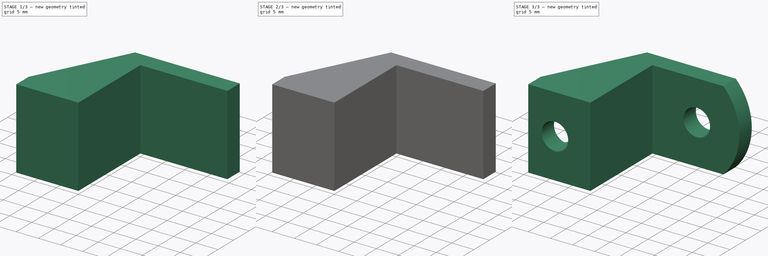
[diagram: build sequence overview — one tinted view per stage of 3, left to right]
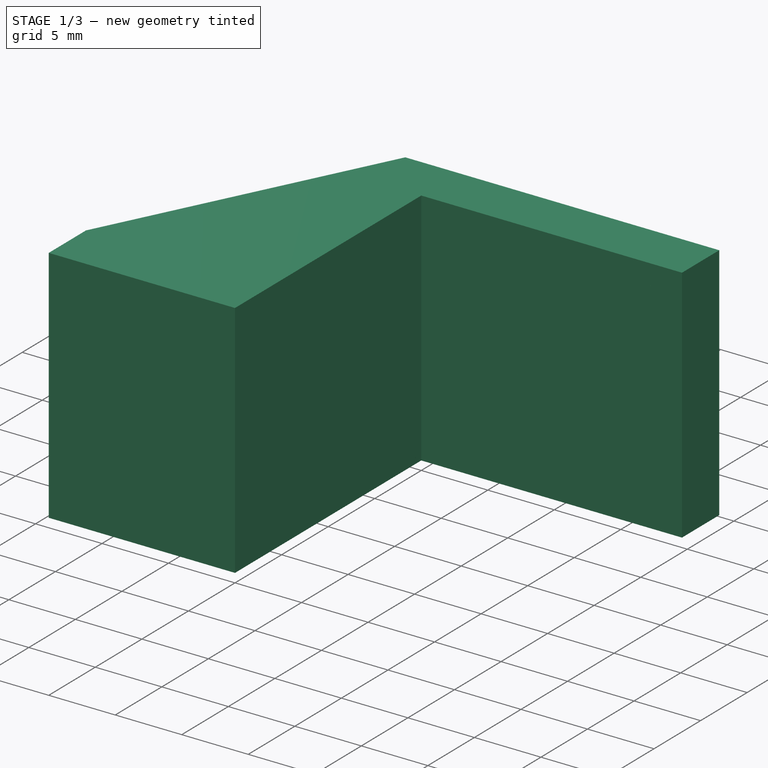
[diagram: stage 1 of 3 — iso view after this stage's code; geometry added in this stage tinted green]
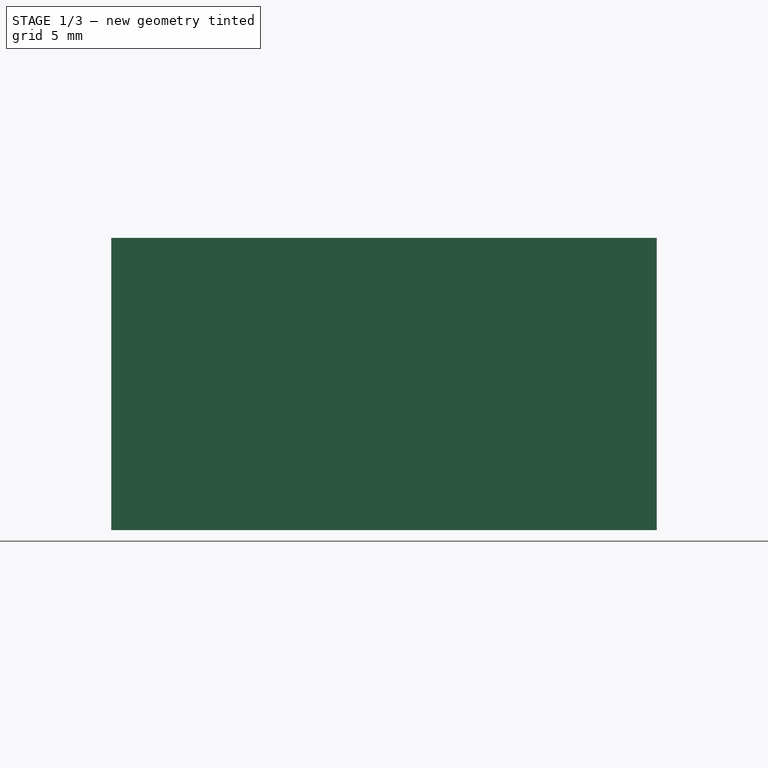
[diagram: stage 1 of 3 — front view after this stage's code; geometry added in this stage tinted green]
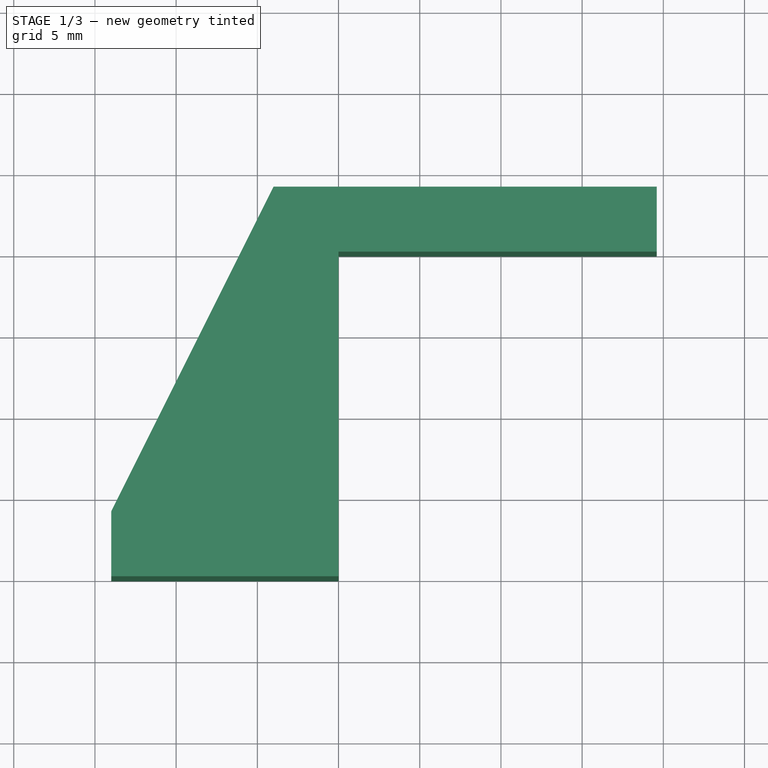
[diagram: stage 1 of 3 — top view after this stage's code; geometry added in this stage tinted green]
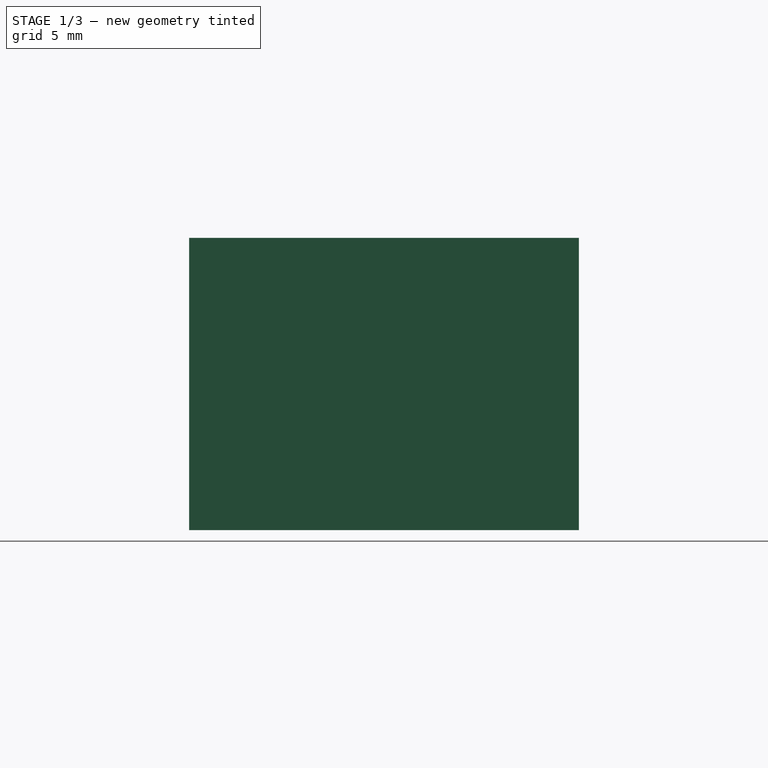
[diagram: stage 1 of 3 — right view after this stage's code; geometry added in this stage tinted green]
FCSTD DOCUMENT  (FreeCAD 0.14R2756 (Git))
Label: electronics_case_mount_v1.1
License: CC-BY 3.0
LicenseURL: http://creativecommons.org/licenses/by/3.0/
objects: Sketcher::SketchObject×4, PartDesign::Pocket×3, PartDesign::Pad×1, Part::Feature×1, PartDesign::Chamfer×1
note: 14 computed .brp shape members not serialized (recipe doc carries the construction recipe); baked Part::Feature solids carry a one-line shape summary decoded from their .brp

FEATURE [Sketcher::SketchObject] Sketch
  sketch-geometry (7):
    g0: LineSegment StartX=-4 StartY=24 StartZ=0 EndX=19.6 EndY=24 EndZ=0
    g1: LineSegment StartX=19.6 StartY=24 StartZ=0 EndX=19.6 EndY=20 EndZ=0
    g2: LineSegment StartX=19.6 StartY=20 StartZ=0 EndX=0 EndY=20 EndZ=0
    g3: LineSegment StartX=-14 StartY=4 StartZ=0 EndX=-14 EndY=0 EndZ=0
    g4: LineSegment StartX=-14 StartY=0 StartZ=0 EndX=0 EndY=0 EndZ=0
    g5: LineSegment StartX=0 StartY=20 StartZ=0 EndX=0 EndY=0 EndZ=0
    g6: LineSegment StartX=-4 StartY=24 StartZ=0 EndX=-14 EndY=4 EndZ=0
  constraints (20):
    c: Coincident(g0,g1)
    c: Coincident(g1,g2)
    c: Horizontal(g0)
    c: Horizontal(g2)
    c: Vertical(g1)
    c: Coincident(g3,g4)
    c: Horizontal(g4)
    c: Vertical(g3)
    c: Coincident(g5,g2)
    c: Coincident(g5,g4)
    c: Vertical(g5)
    c: Coincident(g6,g0)
    c: Coincident(g6,g3)
    c: DistanceY(g1) = -4
    c: DistanceY(g3) = -4
    c: DistanceX(g2) = -19.6
    c: DistanceY(g5) = -20
    c: DistanceX(g4) = 14
    c: DistanceX(g0,g2) = 4
    c: Coincident(g4,g-1)
FEATURE [PartDesign::Pad] Pad
  Length = 18
  Length2 = 100
  Sketch = -> Sketch
  Type = 0
FEATURE [Part::Feature] Pocket002001  label="Pocket003"
  shape: bbox 33.6 x 24 x 18 mm, 16 faces (baked)
FEATURE [PartDesign::Chamfer] Chamfer
  Base = -> Pocket002001 [Edge32,Edge31,Edge33,Edge13,Edge26,Edge24]
  Size = 0.4
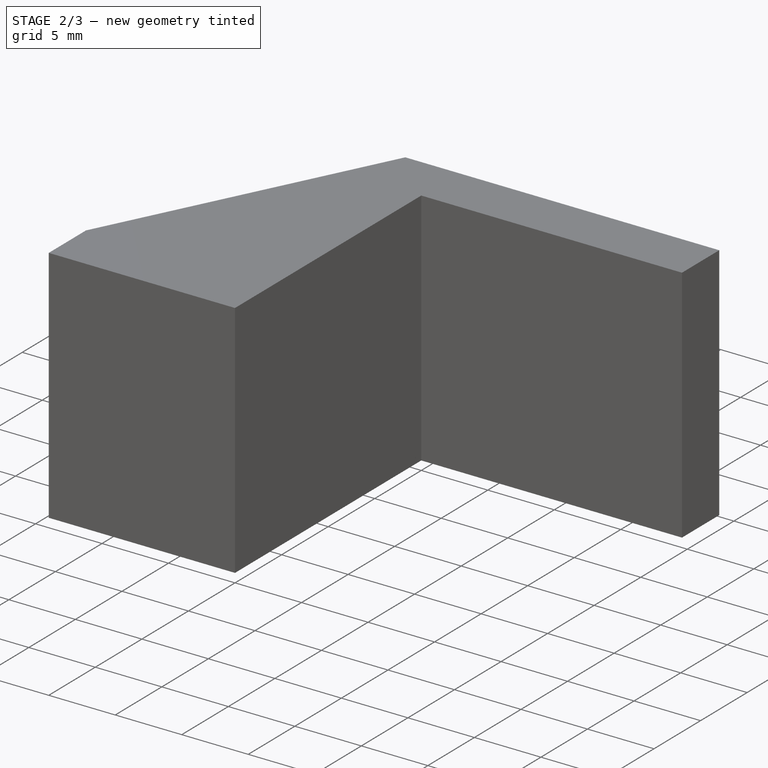
[diagram: stage 2 of 3 — iso view after this stage's code; geometry added in this stage tinted green]
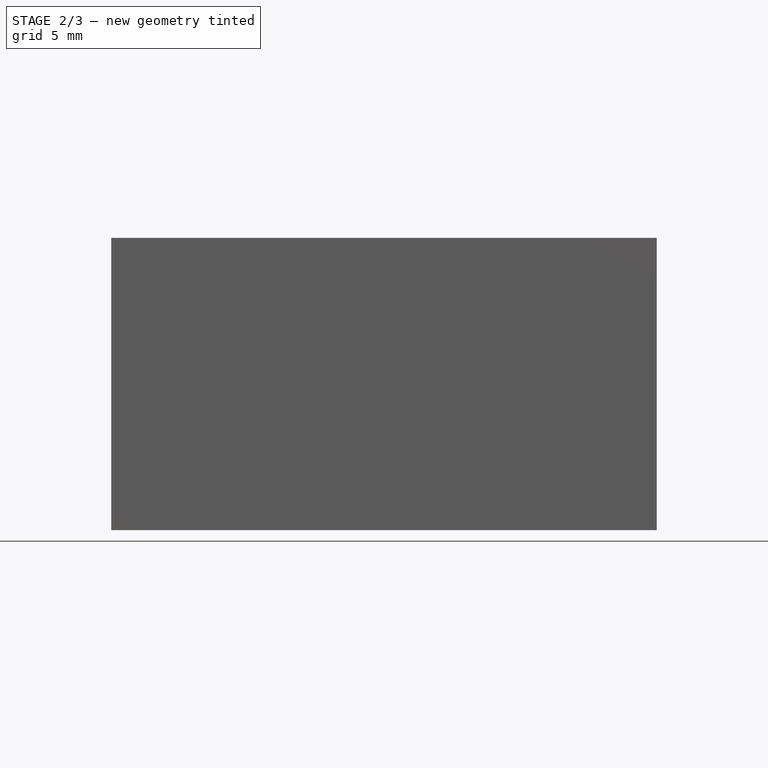
[diagram: stage 2 of 3 — front view after this stage's code; geometry added in this stage tinted green]
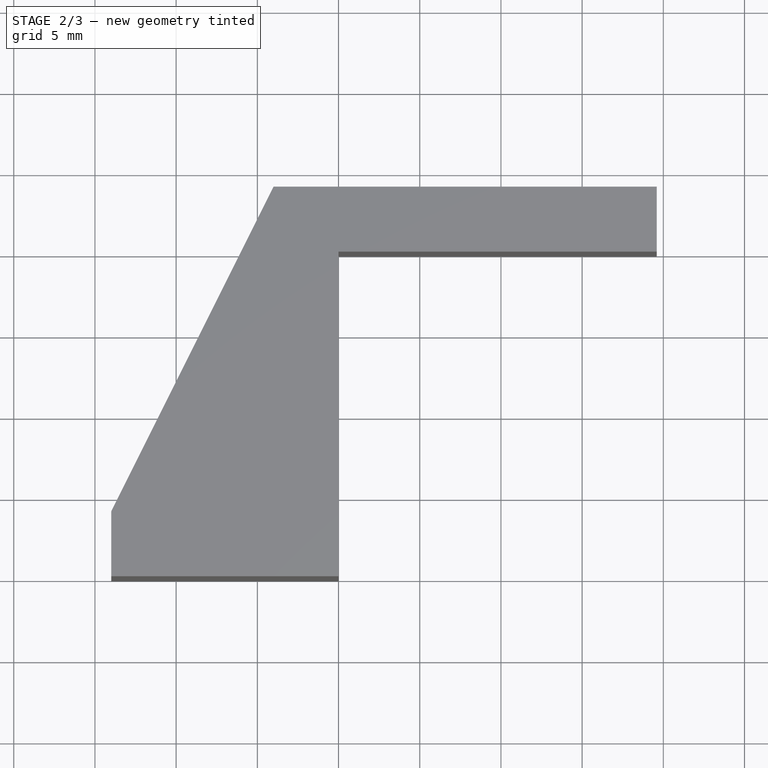
[diagram: stage 2 of 3 — top view after this stage's code; geometry added in this stage tinted green]
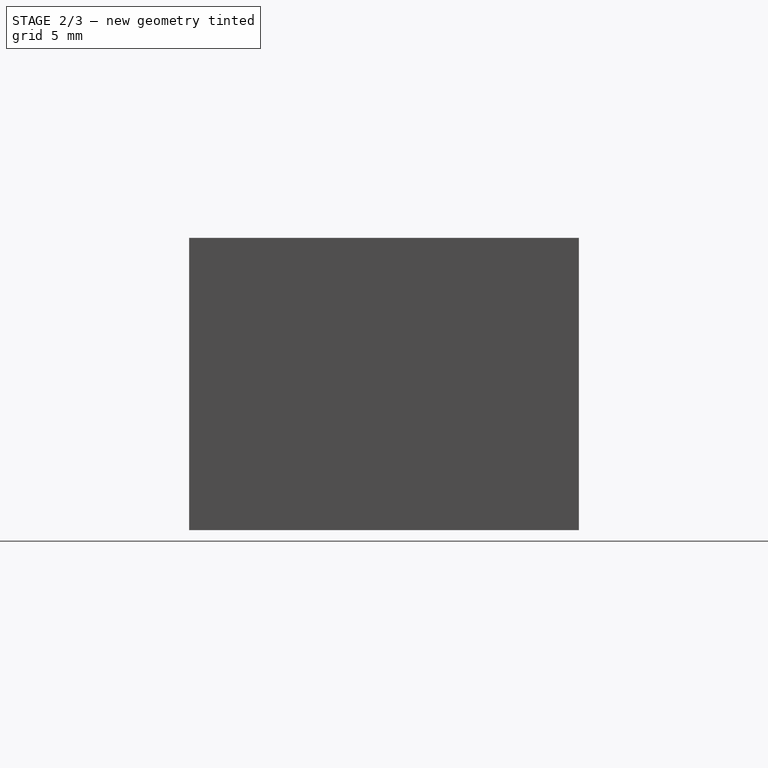
[diagram: stage 2 of 3 — right view after this stage's code; geometry added in this stage tinted green]
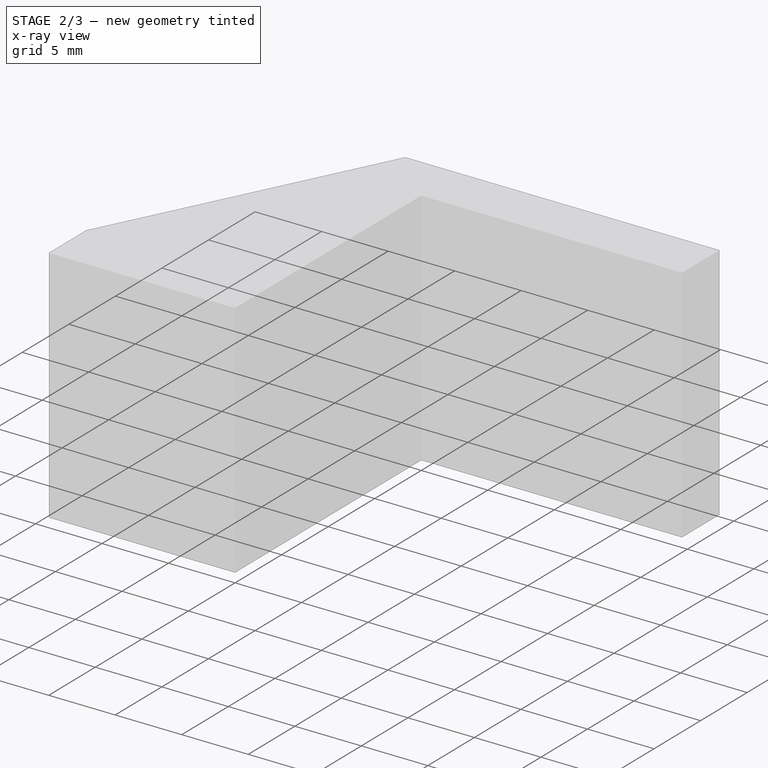
[diagram: stage 2 of 3 — x-ray composite at the iso view; earlier geometry ghosted, this stage's added geometry solid]
FEATURE [Sketcher::SketchObject] Sketch001
  ExternalGeometry = -> [Pad]
  Placement = pos=(0,24,0) rot=(0,0.707107,0.707107;3.14159rad)
  Support = -> Pad [Face1]
  sketch-geometry (5):
    g0: ArcOfCircle CenterX=8 CenterY=9 CenterZ=0 NormalX=0 NormalY=0 NormalZ=1 Radius=5.5 StartAngle=1.5708 EndAngle=4.71239
    g1: LineSegment StartX=8 StartY=14.5 StartZ=0 EndX=28 EndY=14.5 EndZ=0
    g2: LineSegment StartX=28 StartY=14.5 StartZ=0 EndX=28 EndY=3.5 EndZ=0
    g3: LineSegment StartX=28 StartY=3.5 StartZ=0 EndX=8 EndY=3.5 EndZ=0
    g4: LineSegment [constr] StartX=8 StartY=3.5 StartZ=0 EndX=8 EndY=14.5 EndZ=0
  constraints (15):
    c: DistanceY(g-1,g0) = 9
    c: Coincident(g1,g2)
    c: Coincident(g2,g3)
    c: Coincident(g3,g4)
    c: Coincident(g4,g1)
    c: Horizontal(g1)
    c: Horizontal(g3)
    c: Vertical(g2)
    c: Vertical(g4)
    c: Coincident(g3,g0)
    c: PointOnObject(g0,g4)
    c: DistanceY(g2) = -11
    c: Coincident(g0,g1)
    c: DistanceX(g-3,g0) = -6
    c: DistanceX(g1) = 20
FEATURE [PartDesign::Pocket] Pocket
  Length = 20
  Sketch = -> Sketch001
  Type = 0
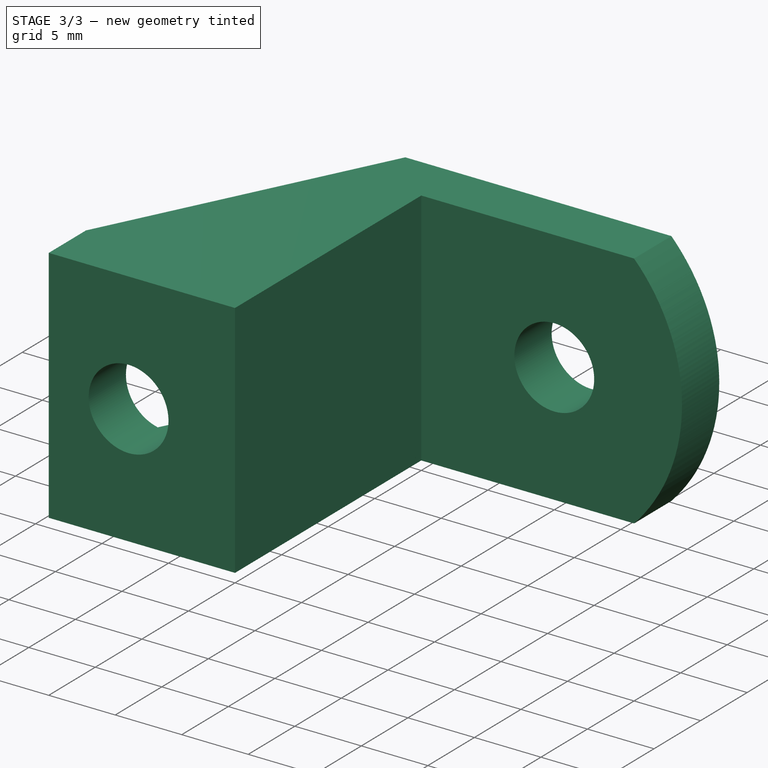
[diagram: stage 3 of 3 — iso view after this stage's code; geometry added in this stage tinted green]
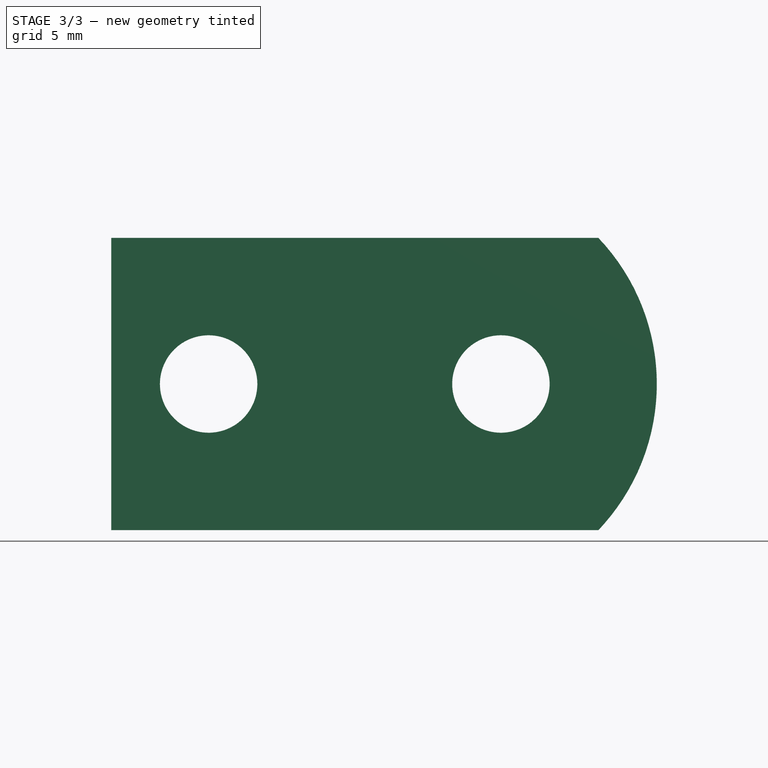
[diagram: stage 3 of 3 — front view after this stage's code; geometry added in this stage tinted green]
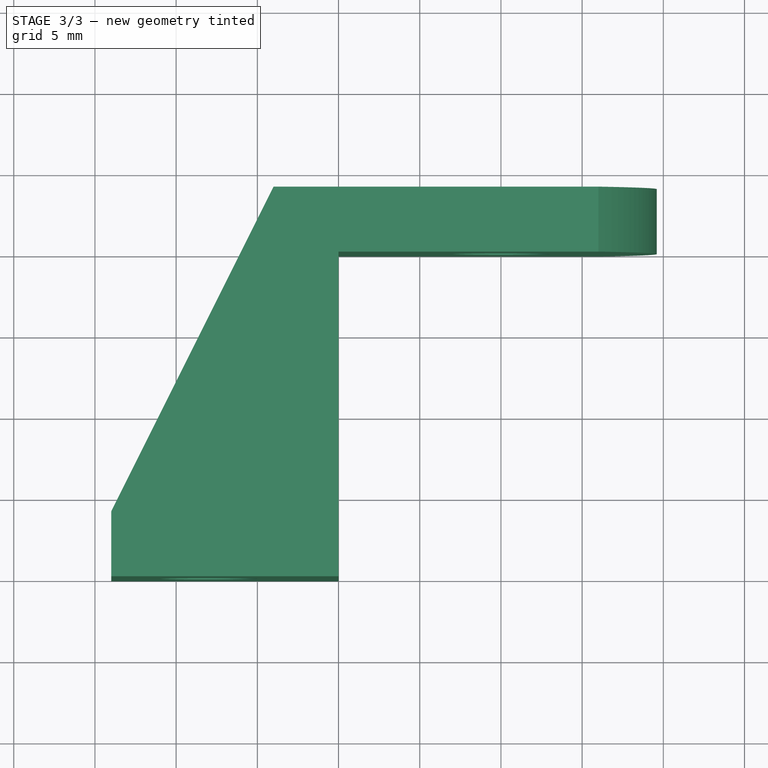
[diagram: stage 3 of 3 — top view after this stage's code; geometry added in this stage tinted green]
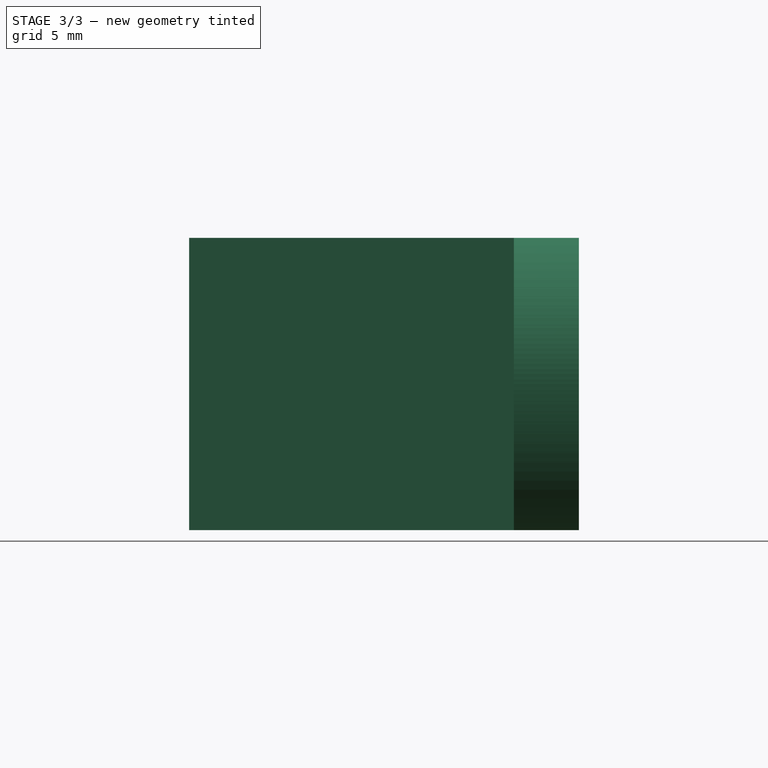
[diagram: stage 3 of 3 — right view after this stage's code; geometry added in this stage tinted green]
FEATURE [Sketcher::SketchObject] Sketch002
  ExternalGeometry = -> [Pocket]
  Placement = pos=(0,4,0) rot=(0,0.707107,0.707107;3.14159rad)
  Support = -> Pocket [Face14]
  sketch-geometry (1):
    g0: Circle CenterX=8 CenterY=9 CenterZ=0 NormalX=0 NormalY=0 NormalZ=1 Radius=3
  constraints (2):
    c: Coincident(g0,g-3)
    c: Radius(g0) = 3
FEATURE [PartDesign::Pocket] Pocket001
  Length = 5
  Sketch = -> Sketch002
  Type = 0
FEATURE [Sketcher::SketchObject] Sketch003
  ExternalGeometry = -> [Pocket001]
  Placement = pos=(0,20,0) rot=(1,0,0;1.5708rad)
  Support = -> Pocket001 [Face3]
  sketch-geometry (7):
    g0: Circle CenterX=10 CenterY=9 CenterZ=0 NormalX=0 NormalY=0 NormalZ=1 Radius=3
    g1: ArcOfCircle CenterX=6.55 CenterY=9 CenterZ=0 NormalX=0 NormalY=0 NormalZ=1 Radius=13.05 StartAngle=5.52217 EndAngle=7.0442
    g2: LineSegment StartX=16 StartY=23 StartZ=0 EndX=26 EndY=23 EndZ=0
    g3: LineSegment StartX=26 StartY=23 StartZ=0 EndX=26 EndY=-5 EndZ=0
    g4: LineSegment StartX=26 StartY=-5 StartZ=0 EndX=16 EndY=-5 EndZ=0
    g5: LineSegment StartX=16 StartY=18 StartZ=0 EndX=16 EndY=23 EndZ=0
    g6: LineSegment StartX=16 StartY=0 StartZ=0 EndX=16 EndY=-5 EndZ=0
  constraints (22):
    c: DistanceY(g-1,g0) = 9
    c: PointOnObject(g1,g-1)
    c: DistanceX(g-3,g0) = 10
    c: Tangent(g1,g-4)
    c: PointOnObject(g1,g-3)
    c: DistanceX(g1,g-3) = -16
    c: DistanceX(g-1,g1) = 16
    c: Radius(g0) = 3
    c: Coincident(g2,g3)
    c: Coincident(g3,g4)
    c: Horizontal(g2)
    c: Horizontal(g4)
    c: Vertical(g3)
    c: Coincident(g5,g1)
    c: Coincident(g5,g2)
    c: Vertical(g5)
    c: Coincident(g6,g1)
    c: Coincident(g6,g4)
    c: Vertical(g6)
    c: Equal(g5,g6)
    c: DistanceY(g5) = 5
    c: DistanceX(g2) = 10
FEATURE [PartDesign::Pocket] Pocket002
  Length = 5
  Sketch = -> Sketch003
  Type = 0
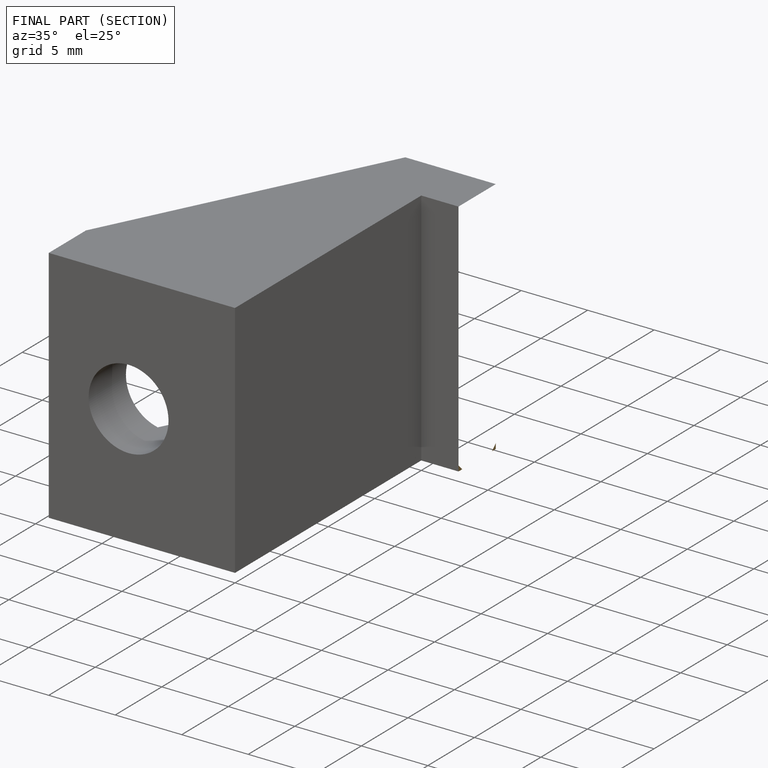
[diagram: finished part — half-section view (interior)]
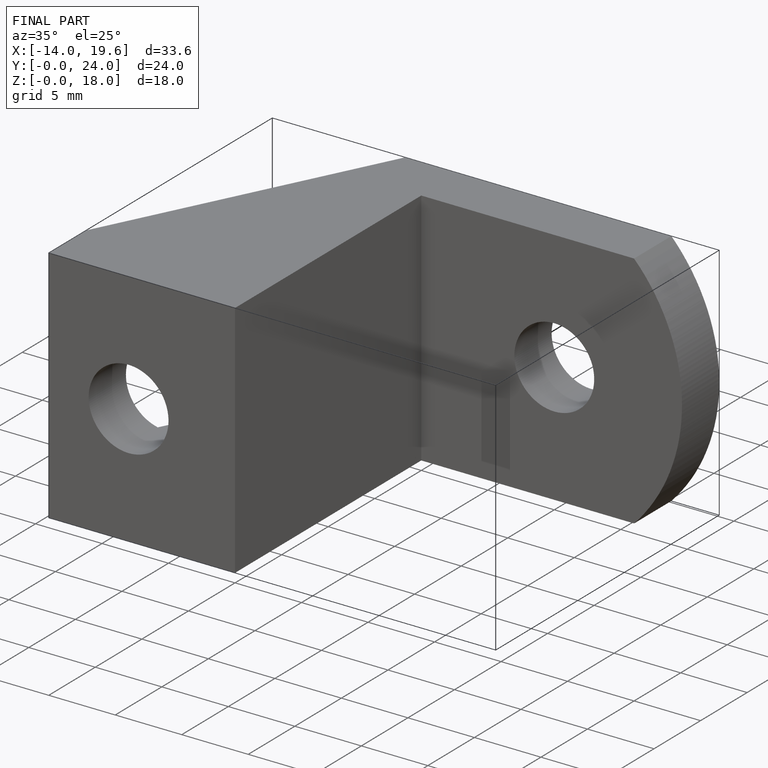
[diagram: finished part — iso view with bounding-box wireframe]
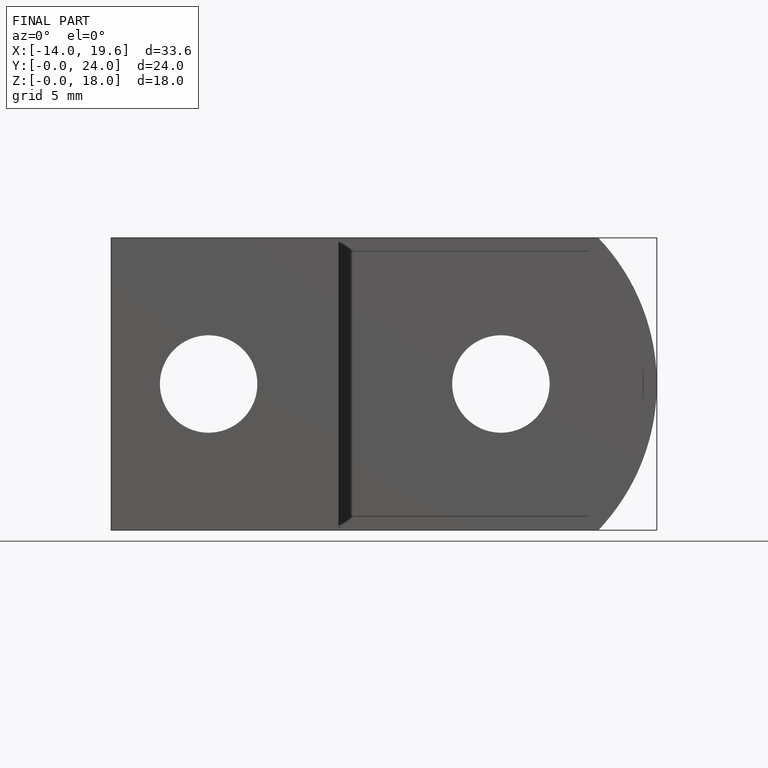
[diagram: finished part — front view with bounding-box wireframe]
